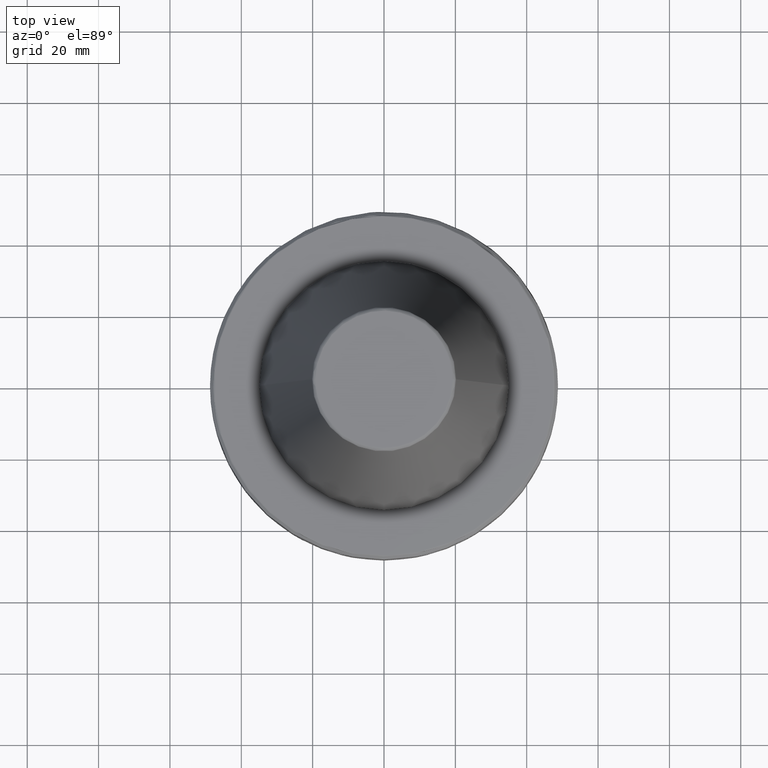
[diagram: clean part render]
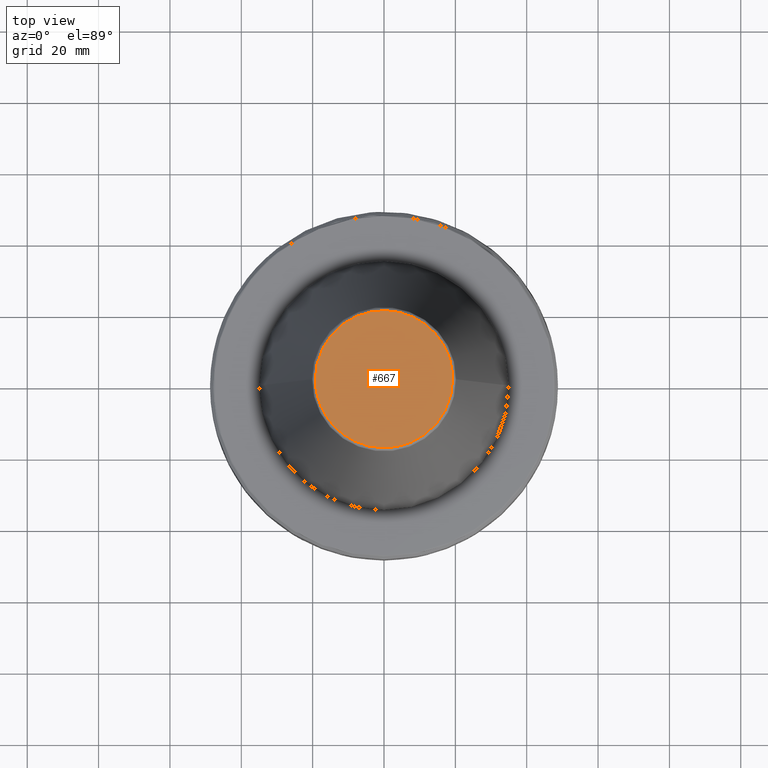
[diagram: same view with one face highlighted and labeled with its STEP entity id]
A machine part, top view. The second image highlights one B-rep face of the part: STEP entity #667.
In plain terms, the highlighted planar face has unit normal (0, 0, 1).
Its self-contained STEP definition (entity closure, byte-faithful):
#245 = ORIENTED_EDGE ( 'NONE', *, *, #2802, .F. ) ;
#293 = EDGE_CURVE ( 'NONE', #1957, #1205, #2910, .T. ) ;
#667 = ADVANCED_FACE ( 'NONE', ( #2039 ), #2436, .T. ) ;
#893 = CARTESIAN_POINT ( 'NONE',  ( 19.22157500054540000, 0.0000000000000000000, 101.7499999999999900 ) ) ;
#906 = CARTESIAN_POINT ( 'NONE',  ( -19.22157500054540000, 2.378200593091452200E-015, 101.7499999999999900 ) ) ;
#930 = CARTESIAN_POINT ( 'NONE',  ( 19.22157500054540000, 38.44315000109079300, 101.7500000000000000 ) ) ;
#935 = CARTESIAN_POINT ( 'NONE',  ( -19.22157500054539600, 38.44315000109079300, 101.7500000000000000 ) ) ;
#970 = CARTESIAN_POINT ( 'NONE',  ( 19.22157500054540000, 0.0000000000000000000, 101.7499999999999900 ) ) ;
#1203 = CARTESIAN_POINT ( 'NONE',  ( 19.22157500054540000, -38.44315000109079300, 101.7500000000000000 ) ) ;
#1205 = VERTEX_POINT ( 'NONE', #1549 ) ;
#1308 = CARTESIAN_POINT ( 'NONE',  ( -19.22157500054540000, 2.378200593091452200E-015, 101.7499999999999900 ) ) ;
#1368 =( BOUNDED_CURVE ( )  B_SPLINE_CURVE ( 3, ( #970, #1203, #2794, #1452 ),
 .UNSPECIFIED., .F., .F. ) 
 B_SPLINE_CURVE_WITH_KNOTS ( ( 4, 4 ),
 ( 0.0000000000000000000, 1.000000000000000000 ),
 .UNSPECIFIED. ) 
 CURVE ( )  GEOMETRIC_REPRESENTATION_ITEM ( )  RATIONAL_B_SPLINE_CURVE ( ( 1.000000000000000000, 0.3333333333333333700, 0.3333333333333333700, 1.000000000000000000 ) ) 
 REPRESENTATION_ITEM ( '' )  );
#1452 = CARTESIAN_POINT ( 'NONE',  ( -19.22157500054540000, 2.378200593091452200E-015, 101.7499999999999900 ) ) ;
#1533 = CARTESIAN_POINT ( 'NONE',  ( 0.0000000000000000000, 7.346249770921763000E-014, 101.7500000000000000 ) ) ;
#1549 = CARTESIAN_POINT ( 'NONE',  ( 19.22157500054540000, 0.0000000000000000000, 101.7499999999999900 ) ) ;
#1577 = DIRECTION ( 'NONE',  ( 1.000000000000000000, 0.0000000000000000000, -0.0000000000000000000 ) ) ;
#1613 = DIRECTION ( 'NONE',  ( 0.0000000000000000000, 0.0000000000000000000, 1.000000000000000000 ) ) ;
#1957 = VERTEX_POINT ( 'NONE', #1308 ) ;
#2039 = FACE_OUTER_BOUND ( 'NONE', #2220, .T. ) ;
#2220 = EDGE_LOOP ( 'NONE', ( #2885, #245 ) ) ;
#2362 = AXIS2_PLACEMENT_3D ( 'NONE', #1533, #1613, #1577 ) ;
#2436 = PLANE ( 'NONE',  #2362 ) ;
#2794 = CARTESIAN_POINT ( 'NONE',  ( -19.22157500054540000, -38.44315000109079300, 101.7500000000000000 ) ) ;
#2802 = EDGE_CURVE ( 'NONE', #1205, #1957, #1368, .T. ) ;
#2885 = ORIENTED_EDGE ( 'NONE', *, *, #293, .F. ) ;
#2910 =( BOUNDED_CURVE ( )  B_SPLINE_CURVE ( 3, ( #906, #935, #930, #893 ),
 .UNSPECIFIED., .F., .F. ) 
 B_SPLINE_CURVE_WITH_KNOTS ( ( 4, 4 ),
 ( 0.0000000000000000000, 1.000000000000000000 ),
 .UNSPECIFIED. ) 
 CURVE ( )  GEOMETRIC_REPRESENTATION_ITEM ( )  RATIONAL_B_SPLINE_CURVE ( ( 1.000000000000000000, 0.3333333333333333700, 0.3333333333333333700, 1.000000000000000000 ) ) 
 REPRESENTATION_ITEM ( '' )  );